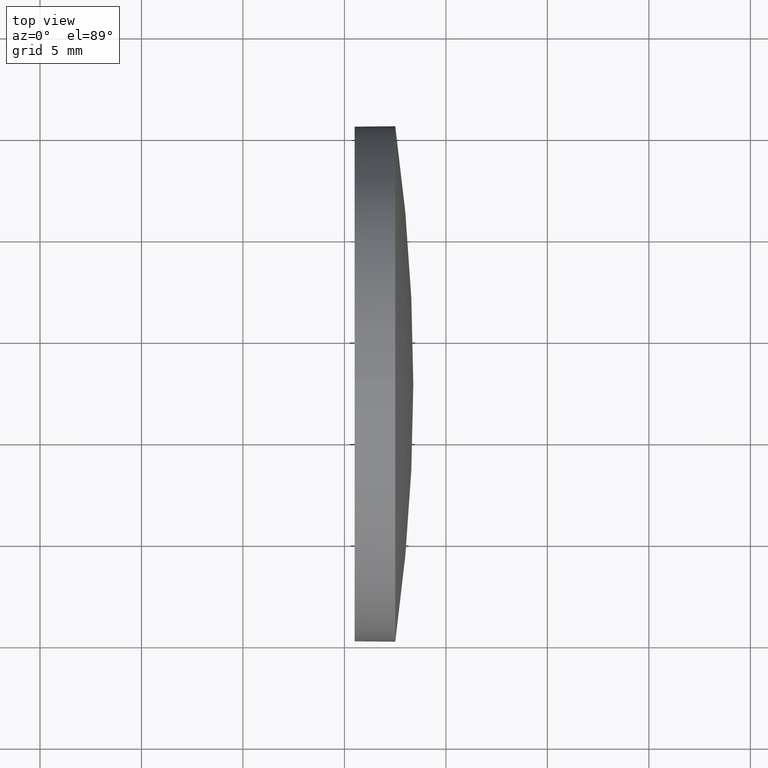
[diagram: clean part render]
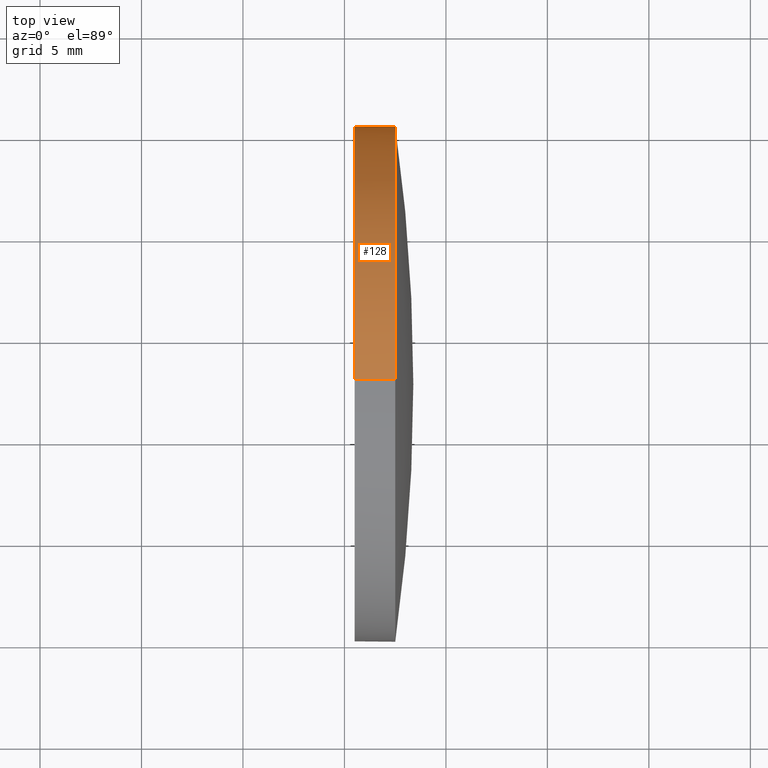
[diagram: same view with one face highlighted and labeled with its STEP entity id]
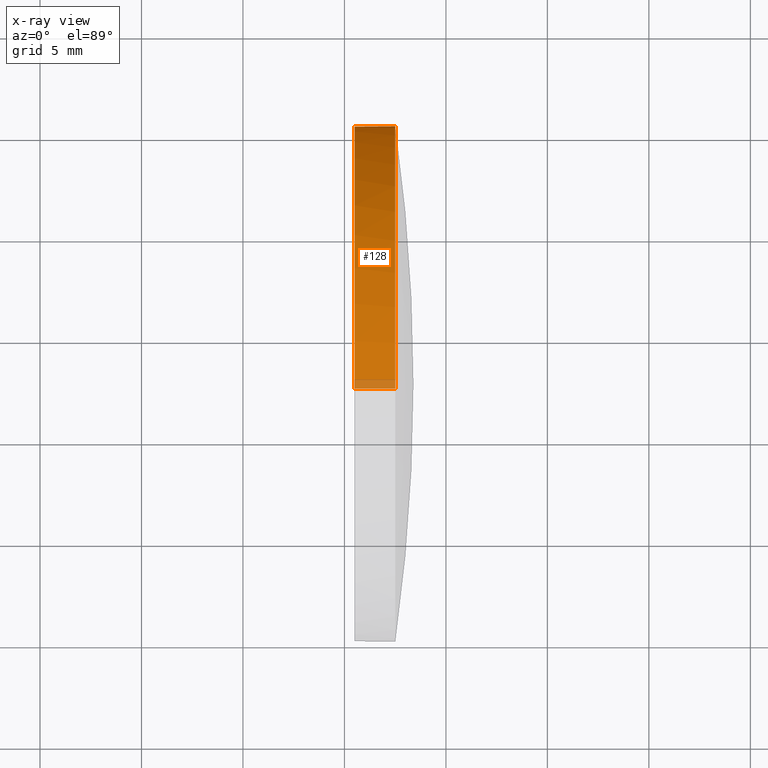
[diagram: x-ray of the same camera — body ghosted, the highlighted face saturated]
A machine part, top view. The second image highlights one B-rep face of the part: STEP entity #128.
The next image is the same camera in x-ray: the body ghosted, the highlighted face saturated — about 3% of this face is hidden behind the body in this view.
In plain terms, the highlighted cylindrical surface (partial cylindrical patch) has radius 12.7 mm, axis along (-1, -0, -0).
Its self-contained STEP definition (entity closure, byte-faithful):
#1 = VERTEX_POINT ( 'NONE', #12 ) ;
#8 = VERTEX_POINT ( 'NONE', #104 ) ;
#10 = CIRCLE ( 'NONE', #186, 12.70000000000000300 ) ;
#12 = CARTESIAN_POINT ( 'NONE',  ( 435.5040893559401000, 72.76896585251475400, -12.70000000000000300 ) ) ;
#13 = DIRECTION ( 'NONE',  ( -1.000000000000000000, -0.0000000000000000000, -0.0000000000000000000 ) ) ;
#15 = DIRECTION ( 'NONE',  ( -1.000000000000000000, -0.0000000000000000000, -0.0000000000000000000 ) ) ;
#23 = ORIENTED_EDGE ( 'NONE', *, *, #58, .T. ) ;
#25 = DIRECTION ( 'NONE',  ( -1.000000000000000000, -0.0000000000000000000, -0.0000000000000000000 ) ) ;
#26 = EDGE_CURVE ( 'NONE', #98, #80, #96, .T. ) ;
#36 = CARTESIAN_POINT ( 'NONE',  ( 435.5040893559401000, 72.76896585251475400, 12.70000000000000300 ) ) ;
#40 = DIRECTION ( 'NONE',  ( -1.000000000000000000, -0.0000000000000000000, -0.0000000000000000000 ) ) ;
#42 = VECTOR ( 'NONE', #13, 1000.000000000000000 ) ;
#48 = ORIENTED_EDGE ( 'NONE', *, *, #93, .F. ) ;
#53 = CARTESIAN_POINT ( 'NONE',  ( 437.5040893559401000, 72.76896585251475400, 12.70000000000000300 ) ) ;
#57 = AXIS2_PLACEMENT_3D ( 'NONE', #124, #40, #137 ) ;
#58 = EDGE_CURVE ( 'NONE', #8, #1, #146, .T. ) ;
#62 = CARTESIAN_POINT ( 'NONE',  ( 429.7994158084853200, 72.76896585251475400, 12.70000000000000300 ) ) ;
#69 = AXIS2_PLACEMENT_3D ( 'NONE', #152, #166, #183 ) ;
#76 = CYLINDRICAL_SURFACE ( 'NONE', #84, 12.70000000000000300 ) ;
#77 = CARTESIAN_POINT ( 'NONE',  ( 429.7994158084853200, 72.76896585251475400, 0.0000000000000000000 ) ) ;
#78 = CIRCLE ( 'NONE', #69, 12.70000000000000300 ) ;
#80 = VERTEX_POINT ( 'NONE', #36 ) ;
#83 = VECTOR ( 'NONE', #25, 1000.000000000000000 ) ;
#84 = AXIS2_PLACEMENT_3D ( 'NONE', #77, #15, #108 ) ;
#88 = EDGE_LOOP ( 'NONE', ( #182, #23, #48, #174, #148 ) ) ;
#89 = DIRECTION ( 'NONE',  ( -1.000000000000000000, -0.0000000000000000000, -0.0000000000000000000 ) ) ;
#93 = EDGE_CURVE ( 'NONE', #80, #1, #10, .T. ) ;
#96 = LINE ( 'NONE', #62, #42 ) ;
#98 = VERTEX_POINT ( 'NONE', #53 ) ;
#104 = CARTESIAN_POINT ( 'NONE',  ( 437.5040893559401000, 72.76896585251475400, -12.70000000000000300 ) ) ;
#108 = DIRECTION ( 'NONE',  ( 0.0000000000000000000, 0.0000000000000000000, 1.000000000000000000 ) ) ;
#109 = FACE_OUTER_BOUND ( 'NONE', #88, .T. ) ;
#114 = EDGE_CURVE ( 'NONE', #98, #170, #78, .T. ) ;
#117 = EDGE_CURVE ( 'NONE', #170, #8, #179, .T. ) ;
#124 = CARTESIAN_POINT ( 'NONE',  ( 437.5040893559401000, 72.76896585251475400, 0.0000000000000000000 ) ) ;
#127 = CARTESIAN_POINT ( 'NONE',  ( 437.5040893559401000, 85.46896585251484200, 1.555301434917144000E-015 ) ) ;
#128 = ADVANCED_FACE ( 'NONE', ( #109 ), #76, .T. ) ;
#133 = DIRECTION ( 'NONE',  ( 0.0000000000000000000, 0.0000000000000000000, 1.000000000000000000 ) ) ;
#136 = CARTESIAN_POINT ( 'NONE',  ( 429.7994158084853200, 72.76896585251475400, -12.70000000000000300 ) ) ;
#137 = DIRECTION ( 'NONE',  ( 0.0000000000000000000, 0.0000000000000000000, 1.000000000000000000 ) ) ;
#146 = LINE ( 'NONE', #136, #83 ) ;
#148 = ORIENTED_EDGE ( 'NONE', *, *, #114, .T. ) ;
#152 = CARTESIAN_POINT ( 'NONE',  ( 437.5040893559401000, 72.76896585251475400, 0.0000000000000000000 ) ) ;
#166 = DIRECTION ( 'NONE',  ( -1.000000000000000000, -0.0000000000000000000, -0.0000000000000000000 ) ) ;
#170 = VERTEX_POINT ( 'NONE', #127 ) ;
#174 = ORIENTED_EDGE ( 'NONE', *, *, #26, .F. ) ;
#179 = CIRCLE ( 'NONE', #57, 12.70000000000000300 ) ;
#180 = CARTESIAN_POINT ( 'NONE',  ( 435.5040893559401000, 72.76896585251475400, 0.0000000000000000000 ) ) ;
#182 = ORIENTED_EDGE ( 'NONE', *, *, #117, .T. ) ;
#183 = DIRECTION ( 'NONE',  ( 0.0000000000000000000, 0.0000000000000000000, 1.000000000000000000 ) ) ;
#186 = AXIS2_PLACEMENT_3D ( 'NONE', #180, #89, #133 ) ;